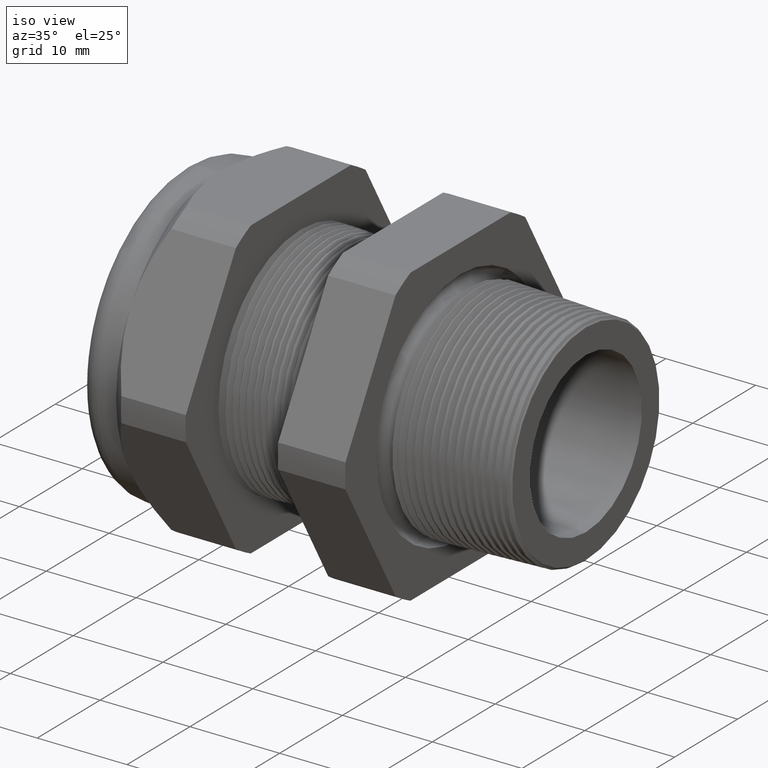
[diagram: clean part render]
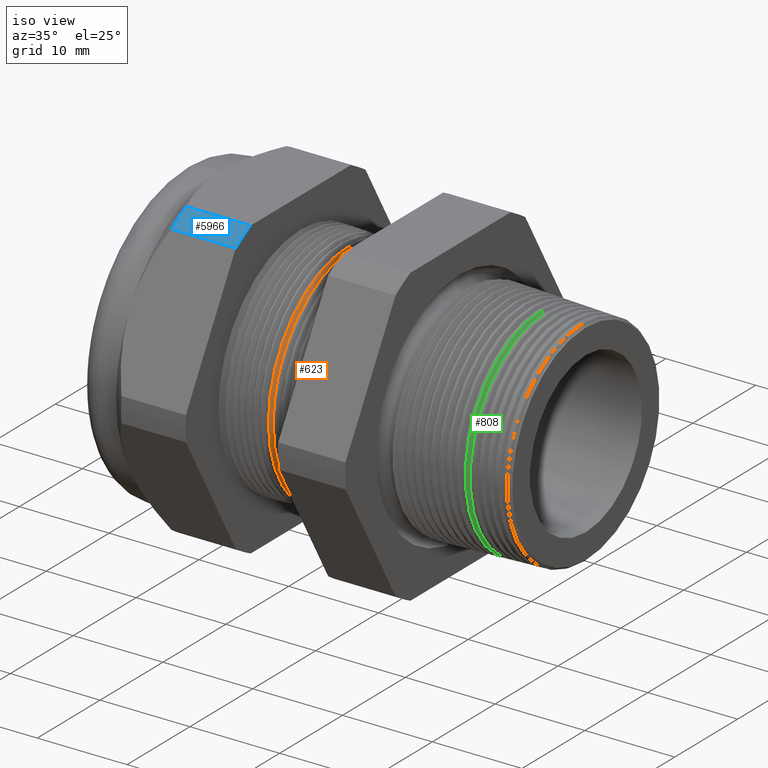
[diagram: same view with three faces highlighted in distinct colors, each labeled with its STEP entity id]
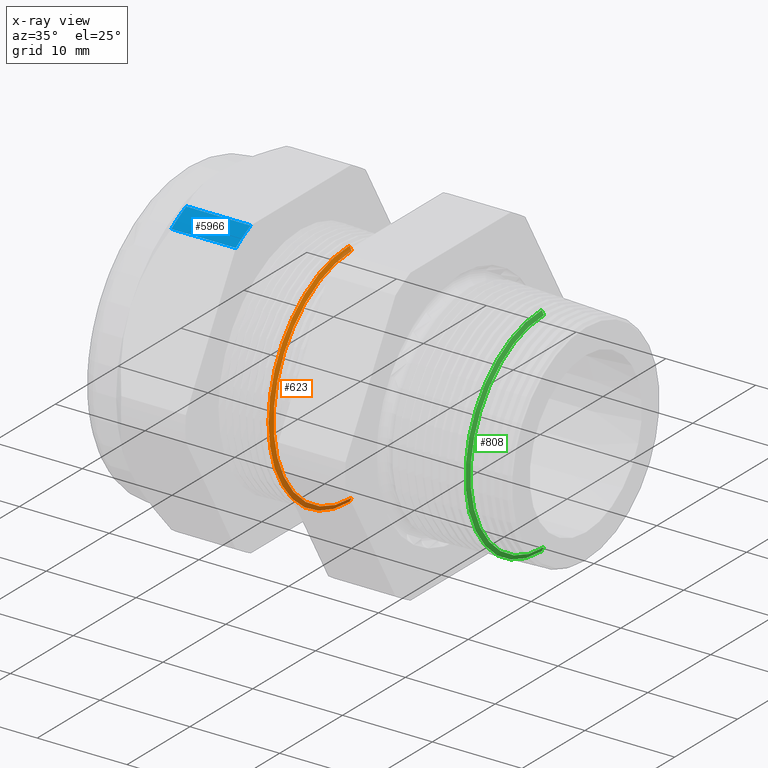
[diagram: x-ray of the same camera — body ghosted, the three highlighted faces saturated]
A machine part, iso view with three faces highlighted in distinct colors.
The next image is the same camera in x-ray (body ghosted, the three faces saturated) — at least one of them is partly hidden behind the body in this view.
Their STEP definitions:

[orange] entity #623 — the highlighted conical surface has half-angle 62 deg.
#623 = ADVANCED_FACE ( 'NONE', ( #2480 ), #2477, .T. ) ;
#624 = EDGE_LOOP ( 'NONE', ( #625, #626, #628, #629 ) ) ;
#625 = ORIENTED_EDGE ( 'NONE', *, *, #6271, .F. ) ;
#626 = ORIENTED_EDGE ( 'NONE', *, *, #627, .F. ) ;
#627 = EDGE_CURVE ( 'NONE', #6245, #6250, #2471, .T. ) ;
#628 = ORIENTED_EDGE ( 'NONE', *, *, #6253, .T. ) ;
#629 = ORIENTED_EDGE ( 'NONE', *, *, #3437, .T. ) ;
#2468 = DIRECTION ( 'NONE',  ( 0.0000000000000000000, 0.0000000000000000000, -1.000000000000000000 ) ) ;
#2469 = DIRECTION ( 'NONE',  ( 1.000000000000000000, 0.0000000000000000000, 0.0000000000000000000 ) ) ;
#2470 = AXIS2_PLACEMENT_3D ( 'NONE', #2476, #2469, #2468 ) ;
#2471 = CIRCLE ( 'NONE', #2470, 0.4895114984791283900 ) ;
#2472 = DIRECTION ( 'NONE',  ( 0.0000000000000000000, 0.0000000000000000000, 1.000000000000000000 ) ) ;
#2473 = DIRECTION ( 'NONE',  ( -1.000000000000000000, 0.0000000000000000000, 0.0000000000000000000 ) ) ;
#2474 = CARTESIAN_POINT ( 'NONE',  ( -0.8003149606299212500, 0.0000000000000000000, 0.0000000000000000000 ) ) ;
#2475 = AXIS2_PLACEMENT_3D ( 'NONE', #2474, #2473, #2472 ) ;
#2476 = CARTESIAN_POINT ( 'NONE',  ( -0.7867624839723554900, 0.0000000000000000000, 0.0000000000000000000 ) ) ;
#2477 = CONICAL_SURFACE ( 'NONE', #2475, 0.5150000000000000100, 1.082104136236472500 ) ;
#2480 = FACE_OUTER_BOUND ( 'NONE', #624, .T. ) ;
#3437 = EDGE_CURVE ( 'NONE', #6255, #6195, #3995, .T. ) ;
#3991 = DIRECTION ( 'NONE',  ( 0.0000000000000000000, 0.0000000000000000000, 1.000000000000000000 ) ) ;
#3992 = DIRECTION ( 'NONE',  ( 1.000000000000000000, 0.0000000000000000000, 0.0000000000000000000 ) ) ;
#3993 = CARTESIAN_POINT ( 'NONE',  ( -0.7963419738687820300, 0.0000000000000000000, 0.0000000000000000000 ) ) ;
#3994 = AXIS2_PLACEMENT_3D ( 'NONE', #3993, #3992, #3991 ) ;
#3995 = CIRCLE ( 'NONE', #3994, 0.5075278986518549900 ) ;
#5397 = CARTESIAN_POINT ( 'NONE',  ( -0.7963419738687820300, 6.217341550302302000E-017, -0.5075278986518549900 ) ) ;
#5496 = CARTESIAN_POINT ( 'NONE',  ( -0.7867624839723554900, 6.105105531601327400E-017, -0.4895114984791283900 ) ) ;
#5500 = CARTESIAN_POINT ( 'NONE',  ( -0.7867624839723554900, 0.0000000000000000000, 0.4895114984791283900 ) ) ;
#5550 = CARTESIAN_POINT ( 'NONE',  ( -0.7963419738687820300, 0.0000000000000000000, 0.5075278986518549900 ) ) ;
#5551 = DIRECTION ( 'NONE',  ( -0.4694715627859013000, 0.0000000000000000000, 0.8829475928589214400 ) ) ;
#5552 = VECTOR ( 'NONE', #5551, 39.37007874015748100 ) ;
#5553 = CARTESIAN_POINT ( 'NONE',  ( -0.8003149606299212500, 0.0000000000000000000, 0.5150000000000000100 ) ) ;
#5554 = LINE ( 'NONE', #5553, #5552 ) ;
#5576 = DIRECTION ( 'NONE',  ( -0.4694715627859013000, 1.081298943409538600E-016, -0.8829475928589214400 ) ) ;
#5577 = VECTOR ( 'NONE', #5576, 39.37007874015748100 ) ;
#5578 = CARTESIAN_POINT ( 'NONE',  ( -0.8003149606299212500, 6.306931015608869800E-017, -0.5150000000000000100 ) ) ;
#5579 = LINE ( 'NONE', #5578, #5577 ) ;
#6195 = VERTEX_POINT ( 'NONE', #5397 ) ;
#6245 = VERTEX_POINT ( 'NONE', #5500 ) ;
#6250 = VERTEX_POINT ( 'NONE', #5496 ) ;
#6253 = EDGE_CURVE ( 'NONE', #6245, #6255, #5554, .T. ) ;
#6255 = VERTEX_POINT ( 'NONE', #5550 ) ;
#6271 = EDGE_CURVE ( 'NONE', #6250, #6195, #5579, .T. ) ;

[blue] entity #5966 — the highlighted cylindrical surface (partial cylindrical patch) has radius 18.3261 mm, axis along (-1, 0, 0).
#4682 = CARTESIAN_POINT ( 'NONE',  ( -1.293145669291338600, -0.4063420493440885700, 0.5961949252843791200 ) ) ;
#4703 = DIRECTION ( 'NONE',  ( -1.000000000000000000, 0.0000000000000000000, 0.0000000000000000000 ) ) ;
#4704 = VECTOR ( 'NONE', #4703, 39.37007874015748100 ) ;
#4706 = CARTESIAN_POINT ( 'NONE',  ( 0.2400000000000001900, -0.4063420493440885700, 0.5961949252843791200 ) ) ;
#4707 = LINE ( 'NONE', #4706, #4704 ) ;
#4723 = CARTESIAN_POINT ( 'NONE',  ( -1.010314960629921100, -0.4063420493440885700, 0.5961949252843791200 ) ) ;
#4841 = CARTESIAN_POINT ( 'NONE',  ( -1.293145669291338800, -0.3131489262315937900, 0.6499999999999999100 ) ) ;
#4891 = CARTESIAN_POINT ( 'NONE',  ( -1.010314960629921100, -0.3131489262315937400, 0.6500000000000000200 ) ) ;
#4919 = DIRECTION ( 'NONE',  ( 0.0000000000000000000, 0.0000000000000000000, -1.000000000000000000 ) ) ;
#4920 = DIRECTION ( 'NONE',  ( 1.000000000000000000, 0.0000000000000000000, 0.0000000000000000000 ) ) ;
#4921 = CARTESIAN_POINT ( 'NONE',  ( -1.293145669291338600, 0.0000000000000000000, 0.0000000000000000000 ) ) ;
#4922 = AXIS2_PLACEMENT_3D ( 'NONE', #4921, #4920, #4919 ) ;
#4923 = CIRCLE ( 'NONE', #4922, 0.7215000000000000300 ) ;
#4948 = DIRECTION ( 'NONE',  ( -1.000000000000000000, 0.0000000000000000000, 0.0000000000000000000 ) ) ;
#4949 = VECTOR ( 'NONE', #4948, 39.37007874015748100 ) ;
#4950 = CARTESIAN_POINT ( 'NONE',  ( 0.2400000000000001900, -0.3131489262315937400, 0.6500000000000000200 ) ) ;
#4951 = LINE ( 'NONE', #4950, #4949 ) ;
#4981 = DIRECTION ( 'NONE',  ( 0.0000000000000000000, 0.0000000000000000000, 1.000000000000000000 ) ) ;
#4982 = DIRECTION ( 'NONE',  ( -1.000000000000000000, 0.0000000000000000000, 0.0000000000000000000 ) ) ;
#4983 = CARTESIAN_POINT ( 'NONE',  ( 0.2400000000000001900, 0.0000000000000000000, 0.0000000000000000000 ) ) ;
#4984 = AXIS2_PLACEMENT_3D ( 'NONE', #4983, #4982, #4981 ) ;
#4986 = CYLINDRICAL_SURFACE ( 'NONE', #4984, 0.7215000000000000300 ) ;
#4987 = FACE_OUTER_BOUND ( 'NONE', #5933, .T. ) ;
#5208 = DIRECTION ( 'NONE',  ( 0.0000000000000000000, 0.0000000000000000000, -1.000000000000000000 ) ) ;
#5209 = DIRECTION ( 'NONE',  ( 1.000000000000000000, 0.0000000000000000000, 0.0000000000000000000 ) ) ;
#5210 = CARTESIAN_POINT ( 'NONE',  ( -1.010314960629921100, 0.0000000000000000000, 0.0000000000000000000 ) ) ;
#5211 = AXIS2_PLACEMENT_3D ( 'NONE', #5210, #5209, #5208 ) ;
#5212 = CIRCLE ( 'NONE', #5211, 0.7215000000000000300 ) ;
#5831 = VERTEX_POINT ( 'NONE', #4682 ) ;
#5843 = VERTEX_POINT ( 'NONE', #4723 ) ;
#5847 = EDGE_CURVE ( 'NONE', #5843, #5831, #4707, .T. ) ;
#5857 = ORIENTED_EDGE ( 'NONE', *, *, #5847, .F. ) ;
#5868 = ORIENTED_EDGE ( 'NONE', *, *, #6110, .F. ) ;
#5898 = ORIENTED_EDGE ( 'NONE', *, *, #5941, .T. ) ;
#5914 = VERTEX_POINT ( 'NONE', #4841 ) ;
#5919 = VERTEX_POINT ( 'NONE', #4891 ) ;
#5929 = ORIENTED_EDGE ( 'NONE', *, *, #5955, .T. ) ;
#5933 = EDGE_LOOP ( 'NONE', ( #5929, #5898, #5857, #5868 ) ) ;
#5941 = EDGE_CURVE ( 'NONE', #5914, #5831, #4923, .T. ) ;
#5955 = EDGE_CURVE ( 'NONE', #5919, #5914, #4951, .T. ) ;
#5966 = ADVANCED_FACE ( 'NONE', ( #4987 ), #4986, .T. ) ;
#6110 = EDGE_CURVE ( 'NONE', #5919, #5843, #5212, .T. ) ;

[green] entity #808 — the highlighted conical surface has half-angle 62 deg.
#808 = ADVANCED_FACE ( 'NONE', ( #2691 ), #2686, .T. ) ;
#809 = EDGE_LOOP ( 'NONE', ( #810, #863, #865, #866 ) ) ;
#810 = ORIENTED_EDGE ( 'NONE', *, *, #1107, .F. ) ;
#863 = ORIENTED_EDGE ( 'NONE', *, *, #864, .F. ) ;
#864 = EDGE_CURVE ( 'NONE', #1114, #1119, #2742, .T. ) ;
#865 = ORIENTED_EDGE ( 'NONE', *, *, #1251, .T. ) ;
#866 = ORIENTED_EDGE ( 'NONE', *, *, #6168, .T. ) ;
#1101 = VERTEX_POINT ( 'NONE', #3164 ) ;
#1102 = VERTEX_POINT ( 'NONE', #3163 ) ;
#1107 = EDGE_CURVE ( 'NONE', #1119, #1102, #3156, .T. ) ;
#1114 = VERTEX_POINT ( 'NONE', #3200 ) ;
#1119 = VERTEX_POINT ( 'NONE', #3193 ) ;
#1251 = EDGE_CURVE ( 'NONE', #1114, #1101, #3769, .T. ) ;
#2681 = DIRECTION ( 'NONE',  ( 0.0000000000000000000, 0.0000000000000000000, 1.000000000000000000 ) ) ;
#2682 = DIRECTION ( 'NONE',  ( -1.000000000000000000, 0.0000000000000000000, 0.0000000000000000000 ) ) ;
#2683 = CARTESIAN_POINT ( 'NONE',  ( 0.04000000000000004900, 0.0000000000000000000, 0.0000000000000000000 ) ) ;
#2684 = AXIS2_PLACEMENT_3D ( 'NONE', #2683, #2682, #2681 ) ;
#2686 = CONICAL_SURFACE ( 'NONE', #2684, 0.4905444626882252100, 1.082104136236471400 ) ;
#2691 = FACE_OUTER_BOUND ( 'NONE', #809, .T. ) ;
#2741 = CARTESIAN_POINT ( 'NONE',  ( 0.05626297198907897300, 0.0000000000000000000, 0.0000000000000000000 ) ) ;
#2742 = CIRCLE ( 'NONE', #2805, 0.4599582608631793700 ) ;
#2803 = DIRECTION ( 'NONE',  ( 0.0000000000000000000, 0.0000000000000000000, -1.000000000000000000 ) ) ;
#2804 = DIRECTION ( 'NONE',  ( 1.000000000000000000, 0.0000000000000000000, 0.0000000000000000000 ) ) ;
#2805 = AXIS2_PLACEMENT_3D ( 'NONE', #2741, #2804, #2803 ) ;
#3156 = LINE ( 'NONE', #3162, #3217 ) ;
#3162 = CARTESIAN_POINT ( 'NONE',  ( 0.04000000000000004900, 6.007437060705932800E-017, -0.4905444626882252100 ) ) ;
#3163 = CARTESIAN_POINT ( 'NONE',  ( 0.04662164460189873600, 5.857861189856594800E-017, -0.4780909604413169900 ) ) ;
#3164 = CARTESIAN_POINT ( 'NONE',  ( 0.04662164460189873600, 0.0000000000000000000, 0.4780909604413169900 ) ) ;
#3193 = CARTESIAN_POINT ( 'NONE',  ( 0.05626297198907897300, 5.743894881566093100E-017, -0.4599582608631793700 ) ) ;
#3200 = CARTESIAN_POINT ( 'NONE',  ( 0.05626297198907897300, 0.0000000000000000000, 0.4599582608631793700 ) ) ;
#3216 = DIRECTION ( 'NONE',  ( -0.4694715627859021900, 1.081298943409537900E-016, -0.8829475928589208800 ) ) ;
#3217 = VECTOR ( 'NONE', #3216, 39.37007874015748100 ) ;
#3766 = DIRECTION ( 'NONE',  ( -0.4694715627859021900, 0.0000000000000000000, 0.8829475928589208800 ) ) ;
#3767 = VECTOR ( 'NONE', #3766, 39.37007874015748100 ) ;
#3768 = CARTESIAN_POINT ( 'NONE',  ( 0.04000000000000004900, 0.0000000000000000000, 0.4905444626882252100 ) ) ;
#3769 = LINE ( 'NONE', #3768, #3767 ) ;
#5332 = DIRECTION ( 'NONE',  ( 0.0000000000000000000, 0.0000000000000000000, 1.000000000000000000 ) ) ;
#5333 = DIRECTION ( 'NONE',  ( 1.000000000000000000, 0.0000000000000000000, 0.0000000000000000000 ) ) ;
#5334 = CARTESIAN_POINT ( 'NONE',  ( 0.04662164460189873600, 0.0000000000000000000, 0.0000000000000000000 ) ) ;
#5335 = AXIS2_PLACEMENT_3D ( 'NONE', #5334, #5333, #5332 ) ;
#5341 = CIRCLE ( 'NONE', #5335, 0.4780909604413169900 ) ;
#6168 = EDGE_CURVE ( 'NONE', #1101, #1102, #5341, .T. ) ;